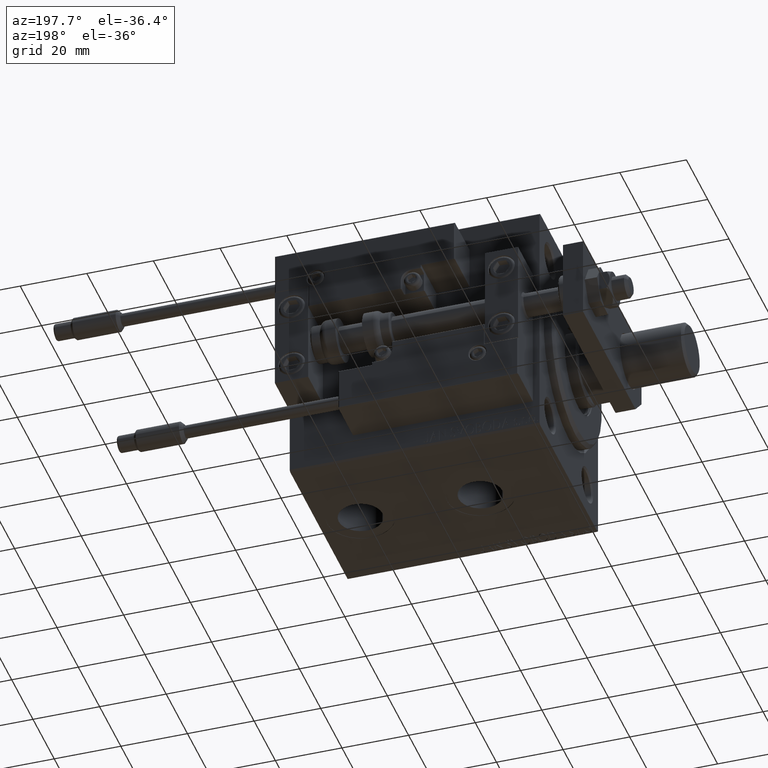
[diagram: clean part render]
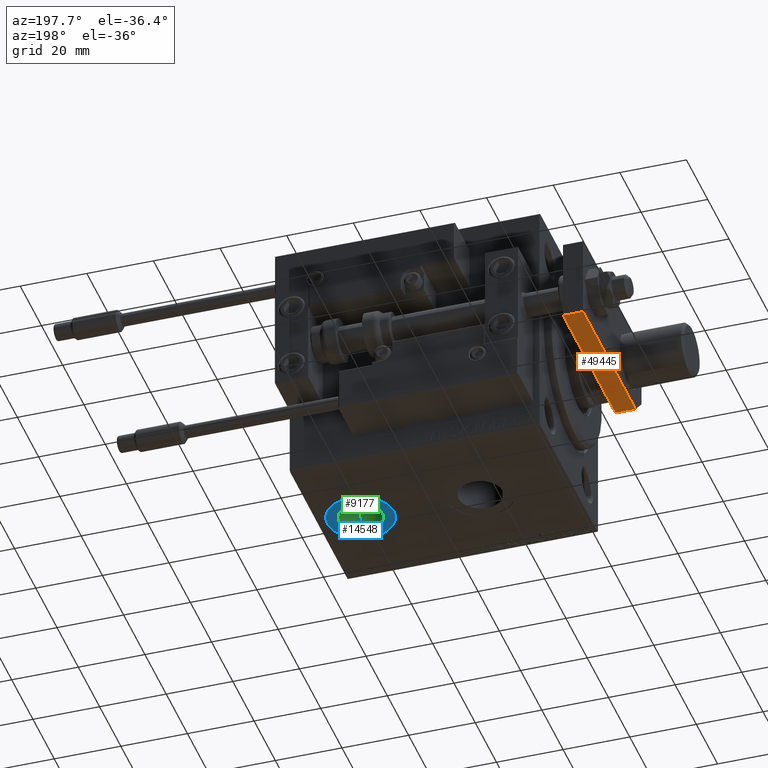
[diagram: same view with three faces highlighted in distinct colors, each labeled with its STEP entity id]
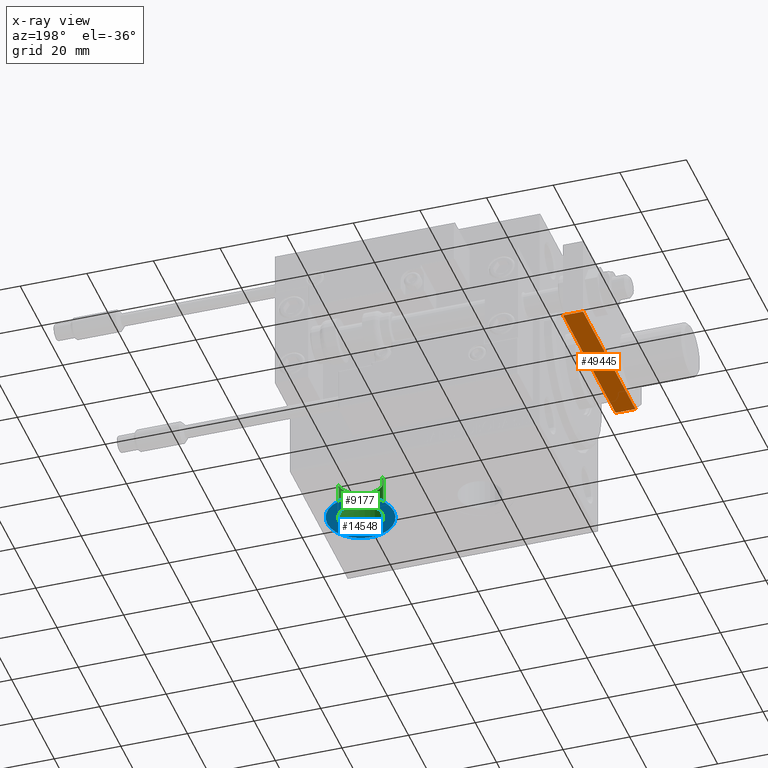
[diagram: x-ray of the same camera — body ghosted, the three highlighted faces saturated]
A machine part, auxiliary view with three faces highlighted in distinct colors.
The next image is the same camera in x-ray (body ghosted, the three faces saturated) — at least one of them is partly hidden behind the body in this view.
Their STEP definitions:

[orange] entity #49445 — the highlighted planar face has unit normal (0, -0, 1).
#1007 = CARTESIAN_POINT ( 'NONE',  ( -12.50000000000000355, 5.660000000000005471, 6.000000000000000000 ) ) ;
#1422 = CARTESIAN_POINT ( 'NONE',  ( -12.50000000000000355, 5.660000000000005471, 6.000000000000000000 ) ) ;
#2554 = DIRECTION ( 'NONE',  ( 9.462128050782583143E-17, 1.000000000000000000, 0.000000000000000000 ) ) ;
#3858 = EDGE_CURVE ( 'NONE', #48036, #29558, #13834, .T. ) ;
#5339 = CARTESIAN_POINT ( 'NONE',  ( -12.49999999999999822, 55.00000000000000000, 6.000000000000000000 ) ) ;
#5747 = CARTESIAN_POINT ( 'NONE',  ( -12.49999999999999822, 55.00000000000000000, 6.000000000000000000 ) ) ;
#7202 = VERTEX_POINT ( 'NONE', #15876 ) ;
#10690 = ORIENTED_EDGE ( 'NONE', *, *, #3858, .T. ) ;
#13676 = CARTESIAN_POINT ( 'NONE',  ( -12.49999999999999822, 55.00000000000000000, 0.000000000000000000 ) ) ;
#13834 = LINE ( 'NONE', #5747, #16448 ) ;
#14192 = ORIENTED_EDGE ( 'NONE', *, *, #48544, .T. ) ;
#15876 = CARTESIAN_POINT ( 'NONE',  ( -12.50000000000000355, 5.660000000000005471, 0.000000000000000000 ) ) ;
#16448 = VECTOR ( 'NONE', #30291, 1000.000000000000000 ) ;
#17270 = VECTOR ( 'NONE', #18256, 1000.000000000000000 ) ;
#18256 = DIRECTION ( 'NONE',  ( -9.462128050782584375E-17, -1.000000000000000000, 0.000000000000000000 ) ) ;
#21786 = DIRECTION ( 'NONE',  ( -9.462128050782584375E-17, -1.000000000000000000, 0.000000000000000000 ) ) ;
#23269 = ORIENTED_EDGE ( 'NONE', *, *, #44764, .F. ) ;
#25859 = ORIENTED_EDGE ( 'NONE', *, *, #43062, .T. ) ;
#29266 = VERTEX_POINT ( 'NONE', #1007 ) ;
#29558 = VERTEX_POINT ( 'NONE', #30331 ) ;
#29745 = LINE ( 'NONE', #1422, #50644 ) ;
#30291 = DIRECTION ( 'NONE',  ( -0.000000000000000000, -0.000000000000000000, -1.000000000000000000 ) ) ;
#30331 = CARTESIAN_POINT ( 'NONE',  ( -12.49999999999999822, 55.00000000000000000, 0.000000000000000000 ) ) ;
#39216 = DIRECTION ( 'NONE',  ( 1.000000000000000000, -9.462128050782583143E-17, 0.000000000000000000 ) ) ;
#41581 = DIRECTION ( 'NONE',  ( 0.000000000000000000, 0.000000000000000000, 1.000000000000000000 ) ) ;
#42248 = LINE ( 'NONE', #5339, #50683 ) ;
#42981 = PLANE ( 'NONE',  #48297 ) ;
#42995 = CARTESIAN_POINT ( 'NONE',  ( -12.49999999999999822, 55.00000000000000000, 6.000000000000000000 ) ) ;
#43062 = EDGE_CURVE ( 'NONE', #7202, #29266, #29745, .T. ) ;
#44040 = CARTESIAN_POINT ( 'NONE',  ( -12.49999999999999822, 55.00000000000000000, 6.000000000000000000 ) ) ;
#44764 = EDGE_CURVE ( 'NONE', #48036, #29266, #42248, .T. ) ;
#47910 = EDGE_LOOP ( 'NONE', ( #14192, #25859, #23269, #10690 ) ) ;
#48036 = VERTEX_POINT ( 'NONE', #42995 ) ;
#48297 = AXIS2_PLACEMENT_3D ( 'NONE', #44040, #39216, #2554 ) ;
#48544 = EDGE_CURVE ( 'NONE', #29558, #7202, #50854, .T. ) ;
#49445 = ADVANCED_FACE ( 'NONE', ( #52134 ), #42981, .F. ) ;
#50644 = VECTOR ( 'NONE', #41581, 1000.000000000000000 ) ;
#50683 = VECTOR ( 'NONE', #21786, 1000.000000000000000 ) ;
#50854 = LINE ( 'NONE', #13676, #17270 ) ;
#52134 = FACE_OUTER_BOUND ( 'NONE', #47910, .T. ) ;

[blue] entity #14548 — the highlighted planar face has unit normal (0, 0, -1).
#664 = VERTEX_POINT ( 'NONE', #12357 ) ;
#2377 = DIRECTION ( 'NONE',  ( 0.000000000000000000, 0.000000000000000000, -1.000000000000000000 ) ) ;
#2607 = CIRCLE ( 'NONE', #51659, 10.00000000000000178 ) ;
#4701 = AXIS2_PLACEMENT_3D ( 'NONE', #15416, #20509, #15956 ) ;
#5394 = CIRCLE ( 'NONE', #31285, 10.00000000000000178 ) ;
#6757 = CIRCLE ( 'NONE', #31754, 6.580000000000002736 ) ;
#7339 = DIRECTION ( 'NONE',  ( -1.000000000000000000, 0.000000000000000000, 0.000000000000000000 ) ) ;
#11117 = FACE_BOUND ( 'NONE', #37927, .T. ) ;
#11131 = EDGE_CURVE ( 'NONE', #28265, #664, #5394, .T. ) ;
#12357 = CARTESIAN_POINT ( 'NONE',  ( 52.49999999999999289, -7.523326685254106813E-15, -37.39999999999999858 ) ) ;
#12820 = VERTEX_POINT ( 'NONE', #22026 ) ;
#13105 = AXIS2_PLACEMENT_3D ( 'NONE', #43607, #2377, #47906 ) ;
#14548 = ADVANCED_FACE ( 'NONE', ( #11117, #39950 ), #40198, .T. ) ;
#15416 = CARTESIAN_POINT ( 'NONE',  ( 62.49999999999999289, -7.523326685254106813E-15, -37.39999999999999858 ) ) ;
#15956 = DIRECTION ( 'NONE',  ( -1.000000000000000000, 0.000000000000000000, -0.000000000000000000 ) ) ;
#16626 = CARTESIAN_POINT ( 'NONE',  ( 72.50000000000000000, -6.298679886106752964E-15, -37.39999999999999858 ) ) ;
#20509 = DIRECTION ( 'NONE',  ( 0.000000000000000000, 0.000000000000000000, -1.000000000000000000 ) ) ;
#21989 = DIRECTION ( 'NONE',  ( -1.000000000000000000, 0.000000000000000000, 0.000000000000000000 ) ) ;
#22026 = CARTESIAN_POINT ( 'NONE',  ( 69.07999999999999829, -6.717509091415148559E-15, -37.39999999999999858 ) ) ;
#23255 = CARTESIAN_POINT ( 'NONE',  ( 62.49999999999999289, -7.523326685254106813E-15, -37.39999999999999858 ) ) ;
#23288 = EDGE_CURVE ( 'NONE', #35487, #12820, #6757, .T. ) ;
#26798 = CARTESIAN_POINT ( 'NONE',  ( 62.49999999999999289, -7.523326685254106813E-15, -37.39999999999999858 ) ) ;
#28265 = VERTEX_POINT ( 'NONE', #16626 ) ;
#29825 = CARTESIAN_POINT ( 'NONE',  ( 62.49999999999999289, -7.523326685254106813E-15, -37.39999999999999858 ) ) ;
#31285 = AXIS2_PLACEMENT_3D ( 'NONE', #26798, #43215, #51564 ) ;
#31711 = CARTESIAN_POINT ( 'NONE',  ( 55.91999999999998749, -7.523326685254106813E-15, -37.39999999999999858 ) ) ;
#31754 = AXIS2_PLACEMENT_3D ( 'NONE', #29825, #49736, #21989 ) ;
#32513 = ORIENTED_EDGE ( 'NONE', *, *, #23288, .F. ) ;
#35487 = VERTEX_POINT ( 'NONE', #31711 ) ;
#36346 = CIRCLE ( 'NONE', #13105, 6.580000000000002736 ) ;
#36984 = EDGE_CURVE ( 'NONE', #12820, #35487, #36346, .T. ) ;
#37927 = EDGE_LOOP ( 'NONE', ( #32513, #40427 ) ) ;
#39950 = FACE_OUTER_BOUND ( 'NONE', #51494, .T. ) ;
#40198 = PLANE ( 'NONE',  #4701 ) ;
#40427 = ORIENTED_EDGE ( 'NONE', *, *, #36984, .F. ) ;
#43215 = DIRECTION ( 'NONE',  ( 0.000000000000000000, 0.000000000000000000, -1.000000000000000000 ) ) ;
#43607 = CARTESIAN_POINT ( 'NONE',  ( 62.49999999999999289, -7.523326685254106813E-15, -37.39999999999999858 ) ) ;
#44129 = ORIENTED_EDGE ( 'NONE', *, *, #11131, .T. ) ;
#44253 = DIRECTION ( 'NONE',  ( 0.000000000000000000, 0.000000000000000000, -1.000000000000000000 ) ) ;
#47376 = EDGE_CURVE ( 'NONE', #664, #28265, #2607, .T. ) ;
#47906 = DIRECTION ( 'NONE',  ( -1.000000000000000000, 0.000000000000000000, 0.000000000000000000 ) ) ;
#49736 = DIRECTION ( 'NONE',  ( 0.000000000000000000, 0.000000000000000000, -1.000000000000000000 ) ) ;
#50966 = ORIENTED_EDGE ( 'NONE', *, *, #47376, .T. ) ;
#51494 = EDGE_LOOP ( 'NONE', ( #50966, #44129 ) ) ;
#51564 = DIRECTION ( 'NONE',  ( -1.000000000000000000, 0.000000000000000000, 0.000000000000000000 ) ) ;
#51659 = AXIS2_PLACEMENT_3D ( 'NONE', #23255, #44253, #7339 ) ;

[green] entity #9177 — the highlighted cylindrical surface (edge-blend (fillet) strip) has radius 6.58 mm, axis along (-0, -0, -1).
#1802 = CARTESIAN_POINT ( 'NONE',  ( 62.49999999999999289, -7.523326685254106813E-15, -24.49999999999999289 ) ) ;
#2377 = DIRECTION ( 'NONE',  ( 0.000000000000000000, 0.000000000000000000, -1.000000000000000000 ) ) ;
#5640 = CARTESIAN_POINT ( 'NONE',  ( 69.07999999999999829, -6.717509091415148559E-15, -24.49999999999999289 ) ) ;
#6109 = FACE_OUTER_BOUND ( 'NONE', #15717, .T. ) ;
#8315 = EDGE_CURVE ( 'NONE', #10718, #35487, #51309, .T. ) ;
#8782 = VECTOR ( 'NONE', #45731, 1000.000000000000000 ) ;
#9115 = EDGE_CURVE ( 'NONE', #35422, #12820, #16383, .T. ) ;
#9177 = ADVANCED_FACE ( 'NONE', ( #6109 ), #14204, .F. ) ;
#10718 = VERTEX_POINT ( 'NONE', #51898 ) ;
#12186 = VECTOR ( 'NONE', #14660, 1000.000000000000000 ) ;
#12820 = VERTEX_POINT ( 'NONE', #22026 ) ;
#13105 = AXIS2_PLACEMENT_3D ( 'NONE', #43607, #2377, #47906 ) ;
#14204 = CYLINDRICAL_SURFACE ( 'NONE', #50082, 6.580000000000002736 ) ;
#14660 = DIRECTION ( 'NONE',  ( -0.000000000000000000, -0.000000000000000000, -1.000000000000000000 ) ) ;
#15329 = EDGE_CURVE ( 'NONE', #35422, #10718, #44276, .T. ) ;
#15717 = EDGE_LOOP ( 'NONE', ( #29593, #44137, #21984, #39599 ) ) ;
#16383 = LINE ( 'NONE', #29597, #8782 ) ;
#18236 = DIRECTION ( 'NONE',  ( -1.000000000000000000, 0.000000000000000000, 0.000000000000000000 ) ) ;
#21984 = ORIENTED_EDGE ( 'NONE', *, *, #36984, .T. ) ;
#22026 = CARTESIAN_POINT ( 'NONE',  ( 69.07999999999999829, -6.717509091415148559E-15, -37.39999999999999858 ) ) ;
#27115 = AXIS2_PLACEMENT_3D ( 'NONE', #36525, #49142, #35535 ) ;
#29593 = ORIENTED_EDGE ( 'NONE', *, *, #15329, .F. ) ;
#29597 = CARTESIAN_POINT ( 'NONE',  ( 69.07999999999999829, -6.717509091415147771E-15, -24.49999999999999289 ) ) ;
#31711 = CARTESIAN_POINT ( 'NONE',  ( 55.91999999999998749, -7.523326685254106813E-15, -37.39999999999999858 ) ) ;
#35156 = CARTESIAN_POINT ( 'NONE',  ( 55.91999999999998749, -7.523326685254106813E-15, -24.49999999999999289 ) ) ;
#35422 = VERTEX_POINT ( 'NONE', #5640 ) ;
#35487 = VERTEX_POINT ( 'NONE', #31711 ) ;
#35535 = DIRECTION ( 'NONE',  ( -1.000000000000000000, 0.000000000000000000, 0.000000000000000000 ) ) ;
#36346 = CIRCLE ( 'NONE', #13105, 6.580000000000002736 ) ;
#36525 = CARTESIAN_POINT ( 'NONE',  ( 62.49999999999999289, -7.523326685254106813E-15, -24.49999999999999289 ) ) ;
#36984 = EDGE_CURVE ( 'NONE', #12820, #35487, #36346, .T. ) ;
#38991 = DIRECTION ( 'NONE',  ( -0.000000000000000000, -0.000000000000000000, -1.000000000000000000 ) ) ;
#39599 = ORIENTED_EDGE ( 'NONE', *, *, #8315, .F. ) ;
#43607 = CARTESIAN_POINT ( 'NONE',  ( 62.49999999999999289, -7.523326685254106813E-15, -37.39999999999999858 ) ) ;
#44137 = ORIENTED_EDGE ( 'NONE', *, *, #9115, .T. ) ;
#44276 = CIRCLE ( 'NONE', #27115, 6.580000000000002736 ) ;
#45731 = DIRECTION ( 'NONE',  ( -0.000000000000000000, -0.000000000000000000, -1.000000000000000000 ) ) ;
#47906 = DIRECTION ( 'NONE',  ( -1.000000000000000000, 0.000000000000000000, 0.000000000000000000 ) ) ;
#49142 = DIRECTION ( 'NONE',  ( 0.000000000000000000, 0.000000000000000000, -1.000000000000000000 ) ) ;
#50082 = AXIS2_PLACEMENT_3D ( 'NONE', #1802, #38991, #18236 ) ;
#51309 = LINE ( 'NONE', #35156, #12186 ) ;
#51898 = CARTESIAN_POINT ( 'NONE',  ( 55.91999999999998749, -7.523326685254106813E-15, -24.49999999999999289 ) ) ;